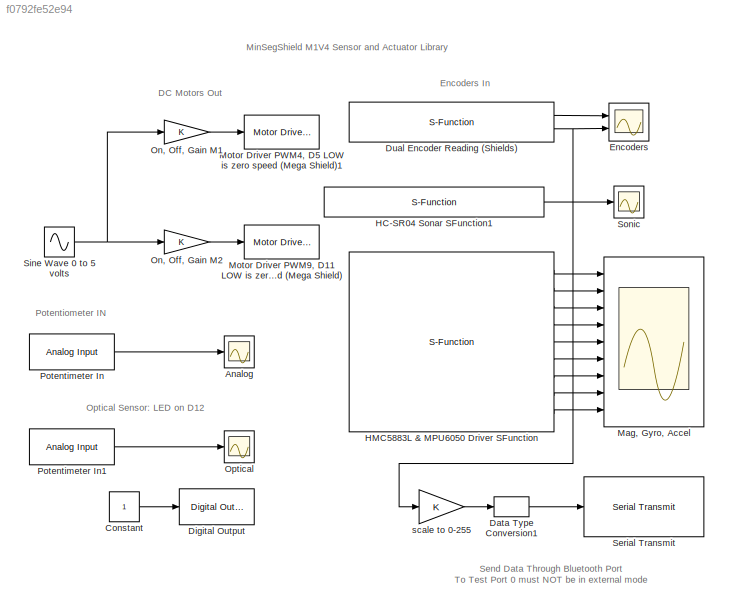
MODEL slx_f0792fe52e94
KIND model
BLOCK [Scope] Analog
  DataFormat = StructureWithTime
  Floating = off
  NumInputPorts = 1
  Ports = [1]
  SampleTime = 0
  SaveName = ScopeData6
  ShowLegends = off
  TimeRange = 30
  YMax = 1100
  YMin = 200
BLOCK [Constant] Constant
BLOCK [DataTypeConversion] Data Type Conversion1
  OutDataTypeStr = uint8
  RndMeth = Floor
  SaturateOnIntegerOverflow = off
BLOCK [Reference] Digital Output  REF=arduinolib/Digital Output
  Ports = [1]
  SourceBlock = arduinolib/Digital Output
  SourceType = Arduino Digital Output
  pinNumber = 12
BLOCK [S-Function] Dual Encoder Reading (Shields)
  CopyFcn = set_param(gcbh,'LinkStatus','none')
  EnableBusSupport = off
  FunctionName = sf_QuadEncoder_2_3_18_19
  InitFcn = try, set_param(gcb,'FunctionName','sf_QuadEncoder_2_3_18_19'), end
  OpenFcn = sfunctionwizard(gcbh)
  Parameters = uint8([0 1]),uint8([2 18]),uint8([3 19])
  Ports = [0, 2]
  PreSaveFcn = try, set_param(gcb,'FunctionName','sf_QuadEncoder_2_3_18_19'), end
  SFunctionModules = sf_QuadEncoder_2_3_18_19_wrapper
BLOCK [Scope] Encoders
  DataFormat = StructureWithTime
  Floating = off
  NumInputPorts = 2
  Ports = [2]
  SampleTime = 0
  ShowLegends = off
  TimeRange = 10
  YMax = 0~1
  YMin = -700~-1
BLOCK [S-Function] HC-SR04 Sonar SFunction1
  CopyFcn = set_param(gcbh,'LinkStatus','none')
  EnableBusSupport = off
  FunctionName = sf_HCSR04_7_8
  InitFcn = try, set_param(gcb,'FunctionName','sf_HCSR04_7_8'), end
  OpenFcn = sfunctionwizard(gcbh)
  Ports = [0, 1]
  PreSaveFcn = try, set_param(gcb,'FunctionName','sf_HCSR04_7_8'), end
  SFunctionModules = sf_HCSR04_7_8_wrapper
BLOCK [S-Function] HMC5883L & MPU6050 Driver SFunction
  CopyFcn = set_param(gcbh,'LinkStatus','none')
  EnableBusSupport = off
  FunctionName = sf_HMC5883L_MPU6050
  InitFcn = try, set_param(gcb,'FunctionName','sf_HMC5883L_MPU6050'), end
  OpenFcn = sfunctionwizard(gcbh)
  Ports = [0, 9]
  PreSaveFcn = try, set_param(gcb,'FunctionName','sf_HMC5883L_MPU6050'), end
  SFunctionModules = sf_HMC5883L_MPU6050_wrapper
BLOCK [Scope] Mag, Gyro, Accel
  DataFormat = StructureWithTime
  Floating = off
  NumInputPorts = 9
  Ports = [9]
  SampleTime = 0
  SaveName = ScopeData1
  ShowLegends = off
  TimeRange = 10
  YMax = 1~1~1~15000~15000~30000~8000~2000~18000
  YMin = -1~-1~-1~-20000~-15000~-30000~-4000~-8000~12000
BLOCK [Reference] Motor Driver PWM4, D5 LOW is zero speed (Mega Shield)1  REF=MinSegLibrary_M1V4/Motor Driver
PWM4, D5
LOW is zero speed
(Mega Shield)
  PWMoffset = 0
  Ports = [1]
  SourceBlock = MinSegLibrary_M1V4/Motor Driver\nPWM4, D5\nLOW is zero speed\n(Mega Shield)
  Vsupply = 4.5
BLOCK [Reference] Motor Driver PWM9, D11 LOW is zero speed (Mega Shield)  REF=MinSegLibrary_M1V4/Motor Driver
PWM9, D11
LOW is zero speed
(Mega Shield)
  PWMoffset = 0
  Ports = [1]
  SourceBlock = MinSegLibrary_M1V4/Motor Driver\nPWM9, D11\nLOW is zero speed\n(Mega Shield)
  Vsupply = 4.5
BLOCK [Gain] On, Off, Gain M1
  OutDataTypeStr = int16
  ParamDataTypeStr = Inherit: Inherit via internal rule
  SaturateOnIntegerOverflow = off
BLOCK [Gain] On, Off, Gain M2
  OutDataTypeStr = int16
  ParamDataTypeStr = Inherit: Inherit via internal rule
  SaturateOnIntegerOverflow = off
BLOCK [Scope] Optical
  DataFormat = StructureWithTime
  Floating = off
  NumInputPorts = 1
  Ports = [1]
  SampleTime = 0
  SaveName = ScopeData3
  ShowLegends = off
  TimeRange = 30
  YMax = 1100
  YMin = 200
BLOCK [Reference] Potentimeter In  REF=arduinolib/Analog Input
  Ports = [0, 1]
  SourceBlock = arduinolib/Analog Input
  SourceType = Arduino Analog Input
  pinNumber = 0
  sampleTime = -1
BLOCK [Reference] Potentimeter In1  REF=arduinolib/Analog Input
  Ports = [0, 1]
  SourceBlock = arduinolib/Analog Input
  SourceType = Arduino Analog Input
  pinNumber = 1
  sampleTime = -1
BLOCK [Reference] Serial Transmit  REF=arduinolib/Serial Transmit
  Ports = [1]
  SourceBlock = arduinolib/Serial Transmit
  SourceType = Arduino Serial Transmit
  portNumber = 2
BLOCK [Sin] Sine Wave 0 to 5 volts
  Amplitude = 5
  Frequency = 50*2*pi
  Ports = [0, 1]
  SampleTime = .1
  Samples = 30
  SineType = Sample based
BLOCK [Scope] Sonic
  DataFormat = StructureWithTime
  Floating = off
  NumInputPorts = 1
  Ports = [1]
  SampleTime = 0
  SaveName = ScopeData2
  ShowLegends = off
  TimeRange = 30
  YMax = 175
  YMin = 0
BLOCK [Gain] scale to 0-255
  OutDataTypeStr = int16
  ParamDataTypeStr = Inherit: Inherit via internal rule
  SaturateOnIntegerOverflow = off
ANNOTATION (root): DC Motors Out
ANNOTATION (root): Encoders In
ANNOTATION (root): MinSegShield M1V4 Sensor and Actuator Library
ANNOTATION (root): Optical Sensor: LED on D12
ANNOTATION (root): Potentiometer IN
ANNOTATION (root): Send Data Through Bluetooth Port To Test Port 0 must NOT be in external mode
LINE Constant:1 -> Digital Output:1
LINE Data Type Conversion1:1 -> Serial Transmit:1
LINE Dual Encoder Reading (Shields):1 -> Encoders:1
NET Dual Encoder Reading (Shields):2 -> Encoders:2, scale to 0-255:1
LINE HC-SR04 Sonar SFunction1:1 -> Sonic:1
LINE HMC5883L & MPU6050 Driver SFunction:1 -> Mag, Gyro, Accel:1
LINE HMC5883L & MPU6050 Driver SFunction:2 -> Mag, Gyro, Accel:2
LINE HMC5883L & MPU6050 Driver SFunction:3 -> Mag, Gyro, Accel:3
LINE HMC5883L & MPU6050 Driver SFunction:4 -> Mag, Gyro, Accel:4
LINE HMC5883L & MPU6050 Driver SFunction:5 -> Mag, Gyro, Accel:5
LINE HMC5883L & MPU6050 Driver SFunction:6 -> Mag, Gyro, Accel:6
LINE HMC5883L & MPU6050 Driver SFunction:7 -> Mag, Gyro, Accel:7
LINE HMC5883L & MPU6050 Driver SFunction:8 -> Mag, Gyro, Accel:8
LINE HMC5883L & MPU6050 Driver SFunction:9 -> Mag, Gyro, Accel:9
LINE On, Off, Gain M1:1 -> Motor Driver PWM4, D5 LOW is zero speed (Mega Shield)1:1
LINE On, Off, Gain M2:1 -> Motor Driver PWM9, D11 LOW is zero speed (Mega Shield):1
LINE Potentimeter In1:1 -> Optical:1
LINE Potentimeter In:1 -> Analog:1
NET Sine Wave 0 to 5 volts:1 -> On, Off, Gain M1:1, On, Off, Gain M2:1
LINE scale to 0-255:1 -> Data Type Conversion1:1
note: NET lines group one-source signal fan-out (src -> all destinations, sorted); 1:1 wires keep LINE
